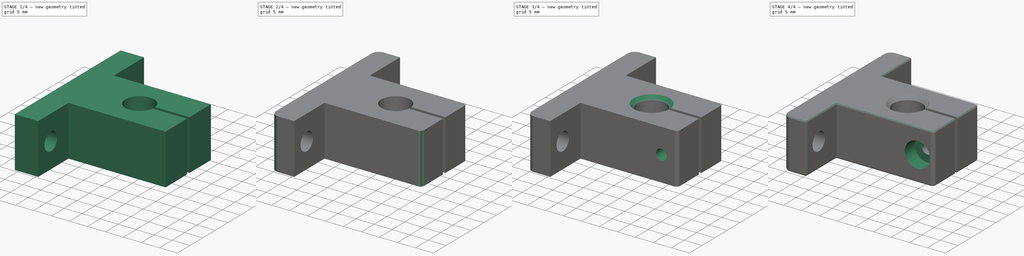
[diagram: build sequence overview — one tinted view per stage of 4, left to right]
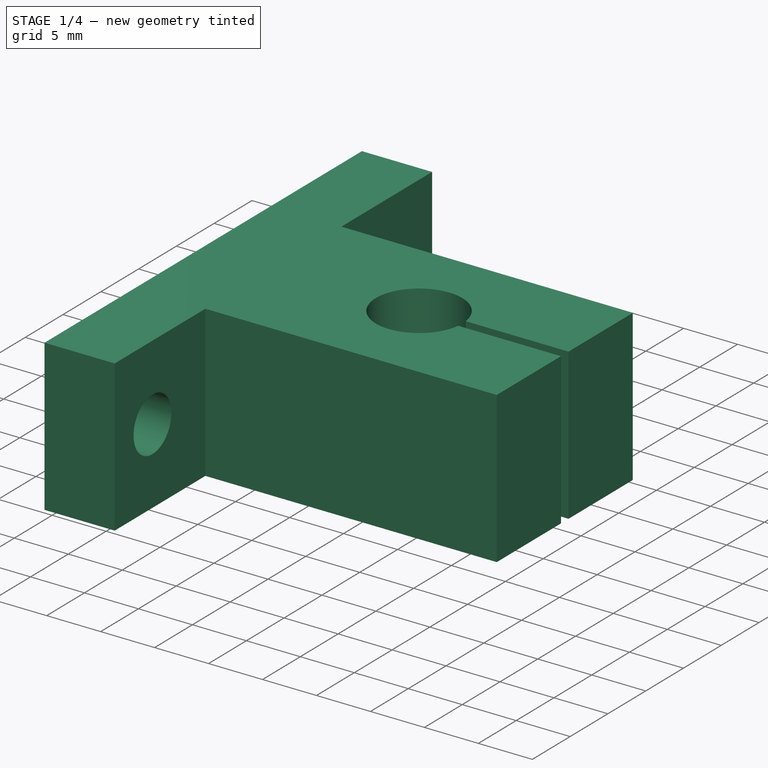
[diagram: stage 1 of 4 — iso view after this stage's code; geometry added in this stage tinted green]
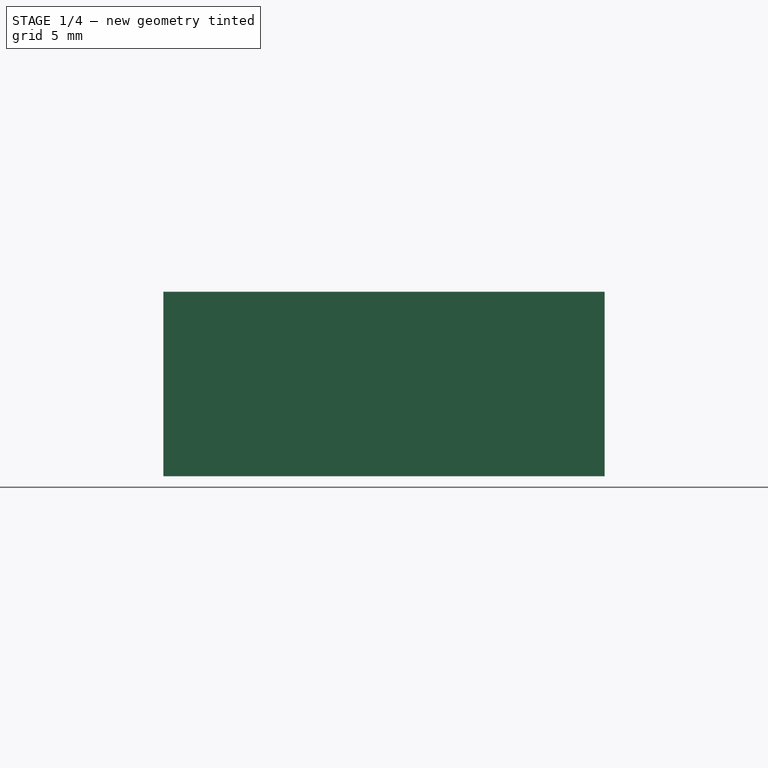
[diagram: stage 1 of 4 — front view after this stage's code; geometry added in this stage tinted green]
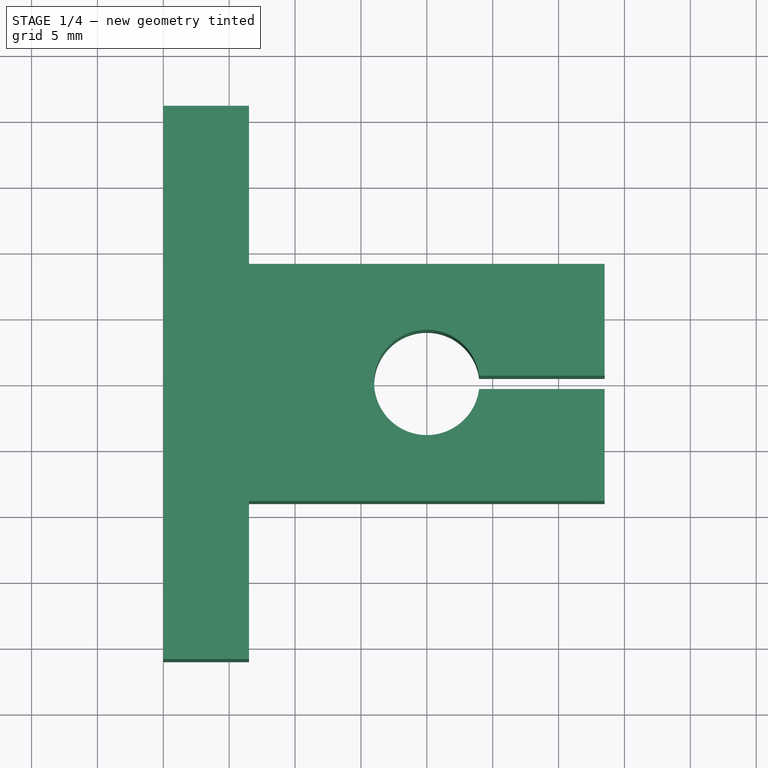
[diagram: stage 1 of 4 — top view after this stage's code; geometry added in this stage tinted green]
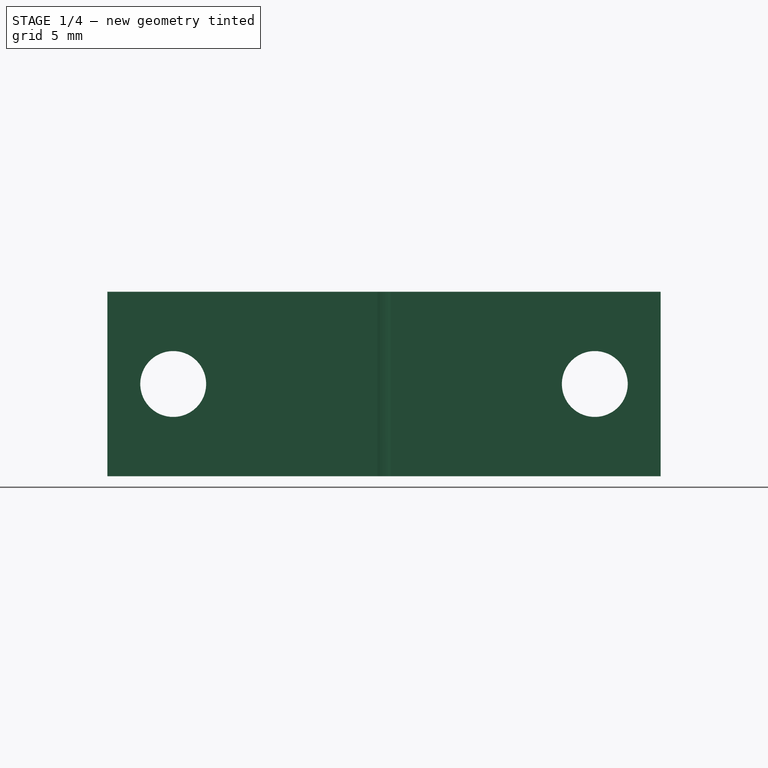
[diagram: stage 1 of 4 — right view after this stage's code; geometry added in this stage tinted green]
FCSTD DOCUMENT  (FreeCAD 0.19R24276 (Git))
Label: Axis_fix_T_form
License: All rights reserved
LicenseURL: http://en.wikipedia.org/wiki/All_rights_reserved
objects: Sketcher::SketchObject×4, PartDesign::Pocket×3, PartDesign::Fillet×3, PartDesign::Chamfer×2, PartDesign::Pad×1, PartDesign::Body×1
note: 23 computed .brp shape members not serialized (recipe doc carries the construction recipe); baked Part::Feature solids carry a one-line shape summary decoded from their .brp

FEATURE [Sketcher::SketchObject] Sketch
  FullyConstrained = true
  MapMode = 5
  Support = -> [XY_Plane]
  sketch-geometry (14):
    g0: LineSegment StartX=-20 StartY=-21 StartZ=0 EndX=-13.5 EndY=-21 EndZ=0
    g1: LineSegment StartX=-13.5 StartY=21 StartZ=0 EndX=-20 EndY=21 EndZ=0
    g2: LineSegment StartX=-20 StartY=21 StartZ=0 EndX=-20 EndY=-21 EndZ=0
    g3: LineSegment StartX=13.5 StartY=9 StartZ=0 EndX=-13.5 EndY=9 EndZ=0
    g4: LineSegment StartX=-13.5 StartY=-9 StartZ=0 EndX=13.5 EndY=-9 EndZ=0
    g5: LineSegment StartX=13.5 StartY=-9 StartZ=0 EndX=13.5 EndY=-0.5 EndZ=0
    g6: LineSegment StartX=-13.5 StartY=9 StartZ=0 EndX=-13.5 EndY=21 EndZ=0
    g7: LineSegment StartX=-13.5 StartY=-9 StartZ=0 EndX=-13.5 EndY=-21 EndZ=0
    g8: ArcOfCircle CenterX=0 CenterY=0 CenterZ=0 NormalX=0 NormalY=0 NormalZ=1 AngleXU=0 Radius=4 StartAngle=0.125328 EndAngle=6.15786
    g9: LineSegment StartX=3.96863 StartY=0.5 StartZ=0 EndX=13.5 EndY=0.5 EndZ=0
    g10: LineSegment StartX=3.96863 StartY=-0.5 StartZ=0 EndX=13.5 EndY=-0.5 EndZ=0
    g11: LineSegment StartX=0 StartY=0 StartZ=0 EndX=3.96863 EndY=0 EndZ=0
    g12: LineSegment StartX=13.5 StartY=0.5 StartZ=0 EndX=13.5 EndY=9 EndZ=0
    g13: LineSegment StartX=0 StartY=0 StartZ=0 EndX=-13.5 EndY=0 EndZ=0
  constraints (39):
    c: Coincident(g1,g2)
    c: Coincident(g2,g0)
    c: Horizontal(g0)
    c: Horizontal(g1)
    c: Vertical(g2)
    c: DistanceY(g2,g2) = 42
    c: Coincident(g4,g5)
    c: Coincident(g12,g3)
    c: Horizontal(g3)
    c: Horizontal(g4)
    c: Vertical(g5)
    c: DistanceY(g5,g12) = 18
    c: DistanceX(g0,g4) = 6.5
    c: Coincident(g6,g3)
    c: Vertical(g6)
    c: Vertical(g7)
    c: Coincident(g7,g0)
    c: Coincident(g6,g1)
    c: DistanceX(g0,g4) = 33.5
    c: Coincident(g4,g7)
    c: Vertical(g4,g3)
    c: DistanceX(g0,g8) = 20
    c: Horizontal(g9)
    c: Horizontal(g10)
    c: DistanceY(g10,g9) = 1
    c: Coincident(g11,g8)
    c: Horizontal(g11)
    c: Symmetric(g9,g10,g11)
    c: Coincident(g8,g9)
    c: Coincident(g8,g10)
    c: Coincident(g5,g10)
    c: Coincident(g12,g9)
    c: Tangent(g5,g12)
    c: Coincident(g13,g8)
    c: Horizontal(g13)
    c: Symmetric(g4,g3,g13)
    c: Equal(g6,g7)
    c: Diameter(g8) = 8
    c: Coincident(g8,g-1)
FEATURE [PartDesign::Pad] Pad
  Direction = (1,1,1)
  Length = 14
  Length2 = 100
  Profile = -> Sketch
  Type = 0
FEATURE [Sketcher::SketchObject] Sketch001
  FullyConstrained = true
  MapMode = 5
  Placement = pos=(-20,0,0) rot=(0.57735,-0.57735,-0.57735;2.0944rad)
  Support = -> [Pad]
  sketch-geometry (3):
    g0: Circle CenterX=-16 CenterY=7 CenterZ=0 NormalX=0 NormalY=0 NormalZ=1 AngleXU=0 Radius=2.5
    g1: Circle CenterX=16 CenterY=7 CenterZ=0 NormalX=0 NormalY=0 NormalZ=1 AngleXU=0 Radius=2.5
    g2: LineSegment StartX=0 StartY=0 StartZ=0 EndX=0 EndY=7 EndZ=0
  constraints (8):
    c: Horizontal(g0,g1)
    c: Diameter(g1) = 5
    c: Equal(g0,g1)
    c: DistanceY(g-1,g1) = 7
    c: DistanceX(g0,g1) = 32
    c: Coincident(g2,g-1)
    c: PointOnObject(g2,g-2)
    c: Symmetric(g0,g1,g2)
FEATURE [PartDesign::Pocket] Pocket
  BaseFeature = -> Pad
  Length = 5
  Length2 = 100
  Profile = -> Sketch001
  Type = 1
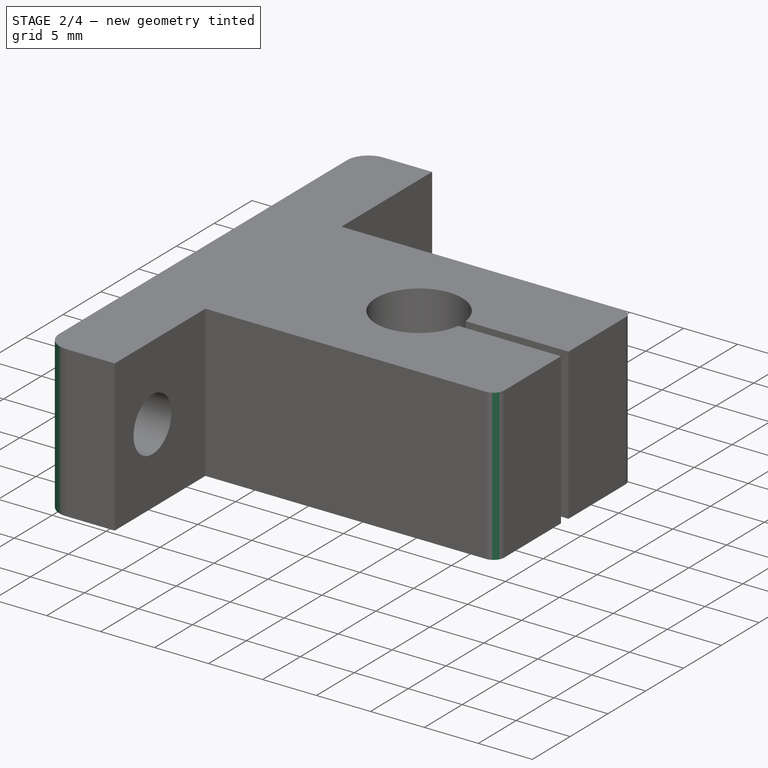
[diagram: stage 2 of 4 — iso view after this stage's code; geometry added in this stage tinted green]
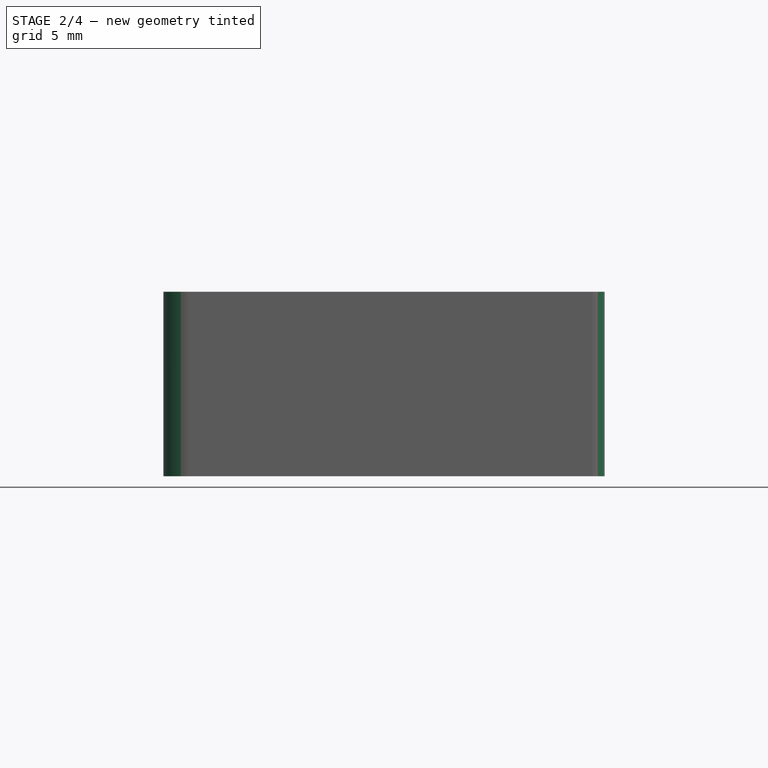
[diagram: stage 2 of 4 — front view after this stage's code; geometry added in this stage tinted green]
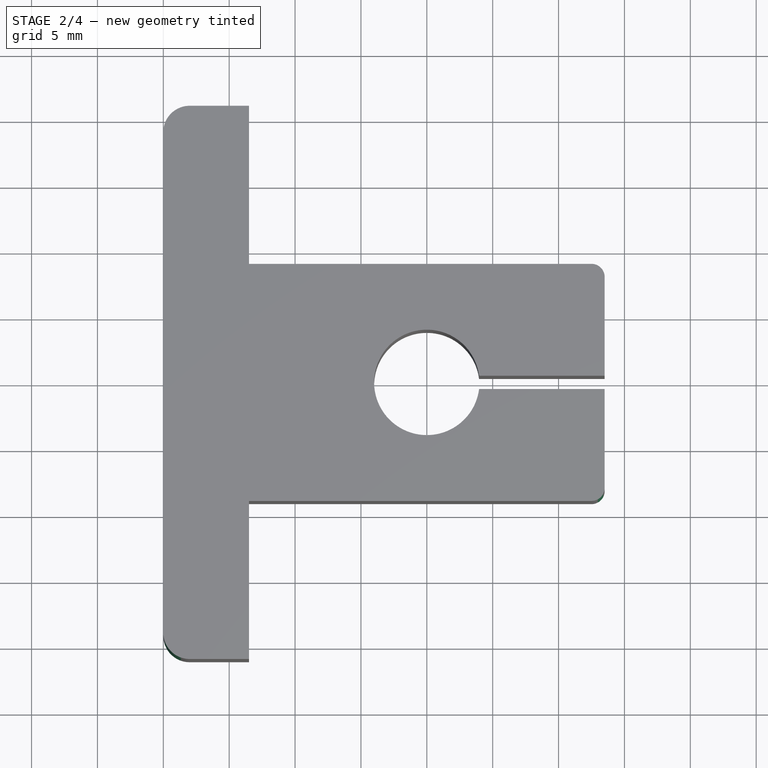
[diagram: stage 2 of 4 — top view after this stage's code; geometry added in this stage tinted green]
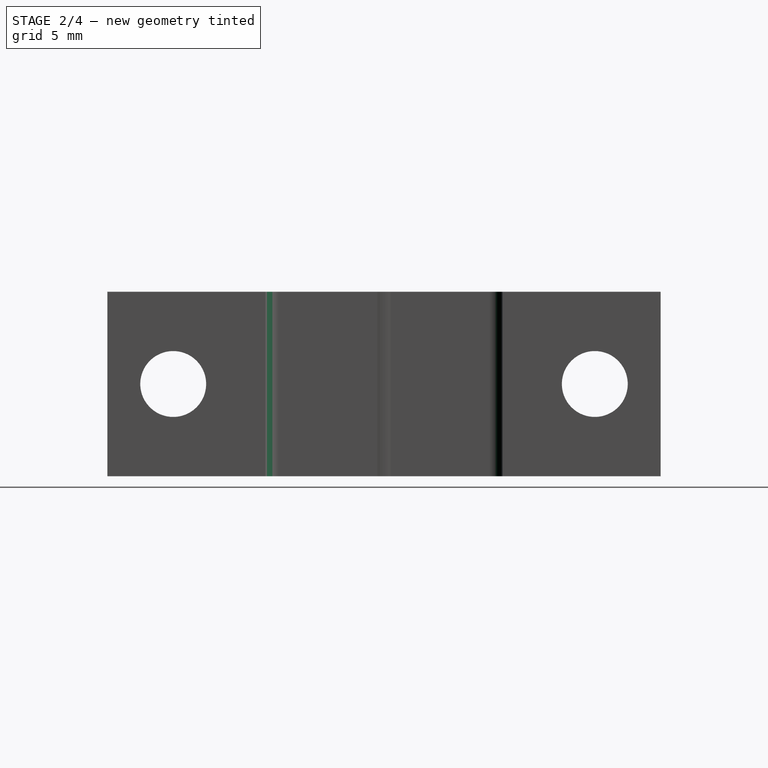
[diagram: stage 2 of 4 — right view after this stage's code; geometry added in this stage tinted green]
FEATURE [PartDesign::Fillet] Fillet
  Base = -> Pocket [Edge33,Edge34]
  BaseFeature = -> Pocket
  Radius = 2
  SupportTransform = false
FEATURE [PartDesign::Fillet] Fillet001
  Base = -> Fillet [Edge27,Edge42]
  BaseFeature = -> Fillet
  Radius = 1
  SupportTransform = false
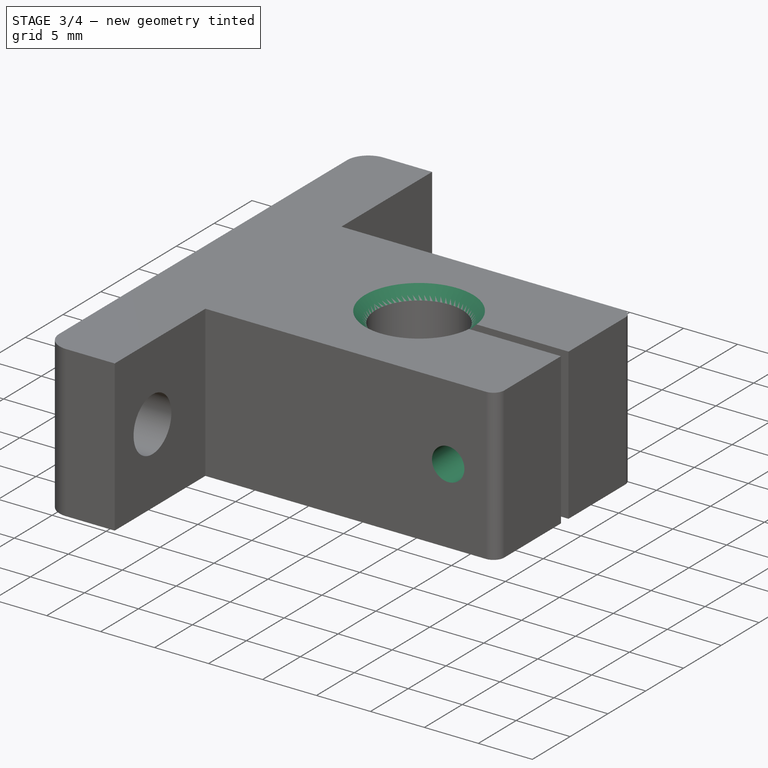
[diagram: stage 3 of 4 — iso view after this stage's code; geometry added in this stage tinted green]
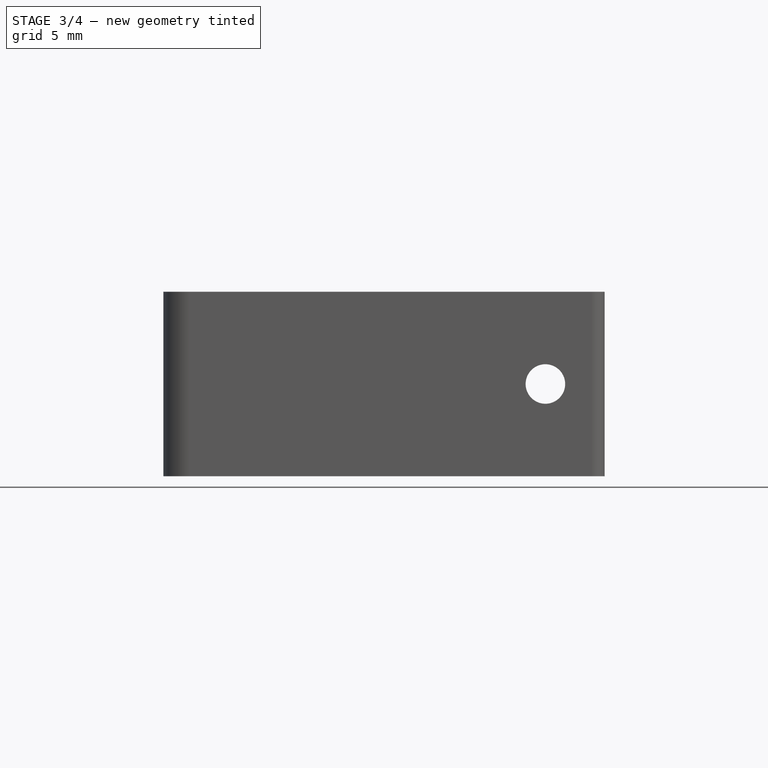
[diagram: stage 3 of 4 — front view after this stage's code; geometry added in this stage tinted green]
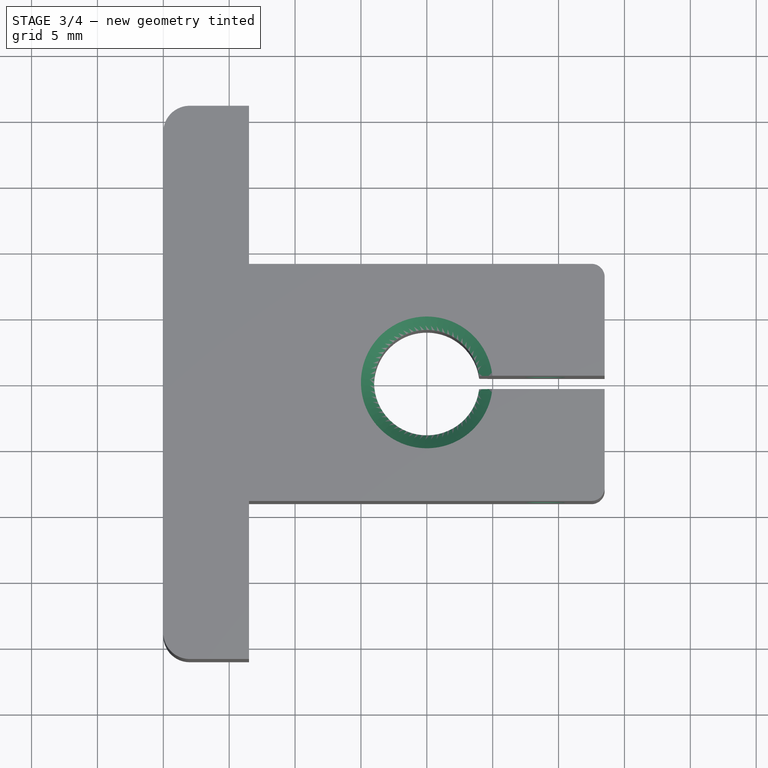
[diagram: stage 3 of 4 — top view after this stage's code; geometry added in this stage tinted green]
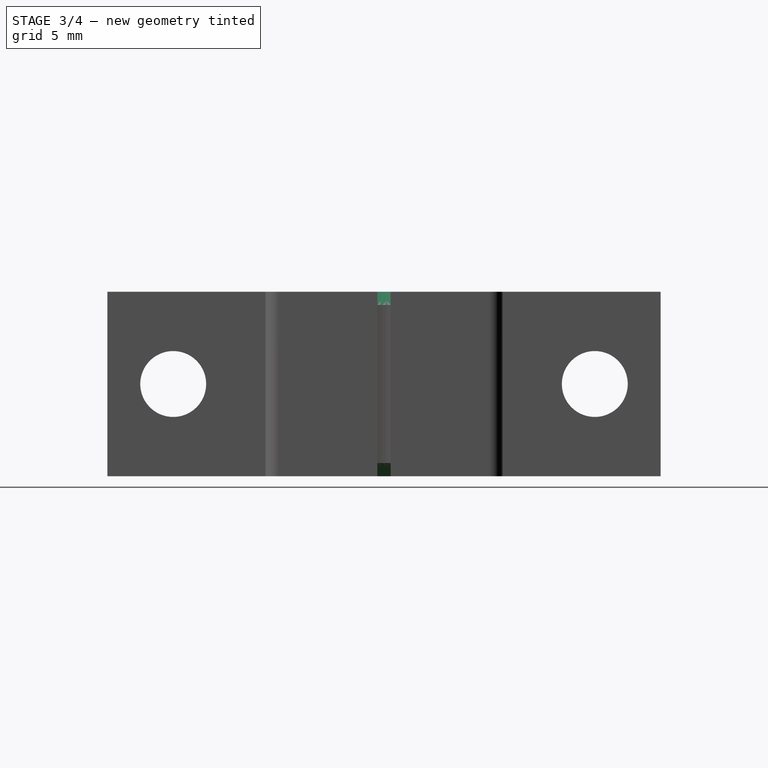
[diagram: stage 3 of 4 — right view after this stage's code; geometry added in this stage tinted green]
FEATURE [PartDesign::Chamfer] Chamfer
  Angle = 45
  Base = -> Fillet001 [Edge34]
  BaseFeature = -> Fillet001
  ChamferType = 0
  FlipDirection = false
  Size = 1
  Size2 = 1
  SupportTransform = false
FEATURE [PartDesign::Chamfer] Chamfer001
  Angle = 45
  Base = -> Chamfer [Edge7]
  BaseFeature = -> Chamfer
  ChamferType = 0
  FlipDirection = false
  Size = 1
  Size2 = 1
  SupportTransform = false
FEATURE [Sketcher::SketchObject] Sketch002
  FullyConstrained = true
  MapMode = 5
  Placement = pos=(0,9,0) rot=(0,0.707107,0.707107;3.14159rad)
  Support = -> [Chamfer001]
  sketch-geometry (1):
    g0: Circle CenterX=-9 CenterY=7 CenterZ=0 NormalX=0 NormalY=0 NormalZ=1 AngleXU=0 Radius=1.5
  constraints (3):
    c: DistanceY(g-1,g0) = 7
    c: DistanceX(g0,g-1) = 9
    c: Diameter(g0) = 3
FEATURE [PartDesign::Pocket] Pocket001
  BaseFeature = -> Chamfer001
  Length = 5
  Length2 = 100
  Profile = -> Sketch002
  Type = 1
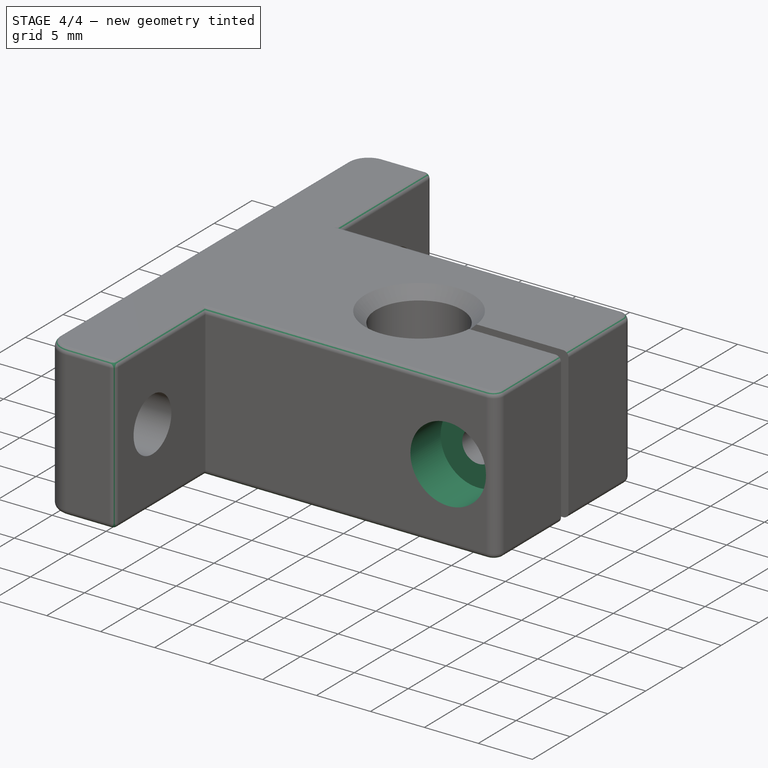
[diagram: stage 4 of 4 — iso view after this stage's code; geometry added in this stage tinted green]
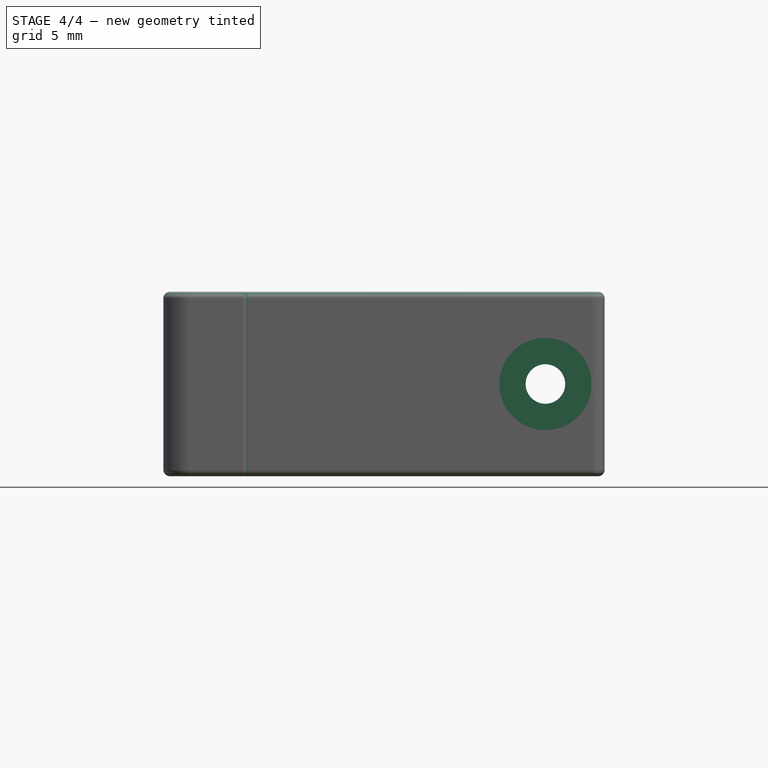
[diagram: stage 4 of 4 — front view after this stage's code; geometry added in this stage tinted green]
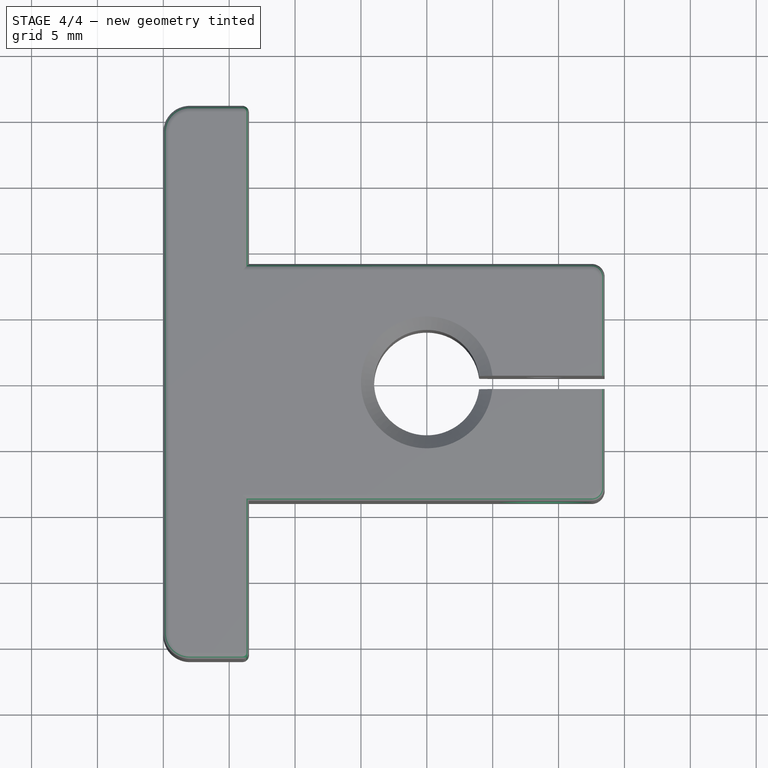
[diagram: stage 4 of 4 — top view after this stage's code; geometry added in this stage tinted green]
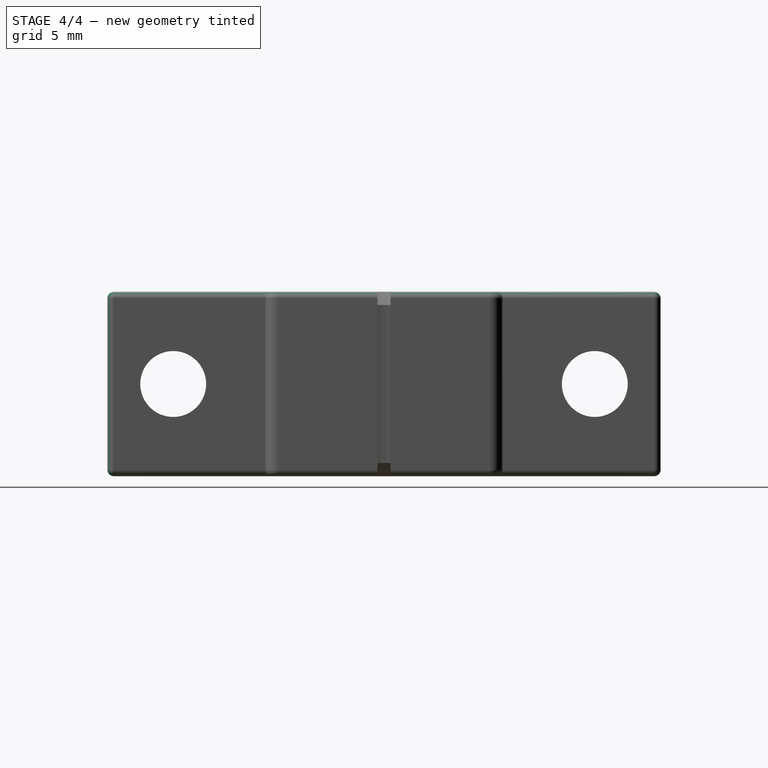
[diagram: stage 4 of 4 — right view after this stage's code; geometry added in this stage tinted green]
FEATURE [Sketcher::SketchObject] Sketch003
  FullyConstrained = true
  MapMode = 5
  Placement = pos=(0,-9,0) rot=(1,0,0;1.5708rad)
  Support = -> [Pocket001]
  sketch-geometry (1):
    g0: Circle CenterX=9 CenterY=7 CenterZ=0 NormalX=0 NormalY=0 NormalZ=1 AngleXU=0 Radius=3.5
  constraints (3):
    c: Diameter(g0) = 7
    c: DistanceX(g-1,g0) = 9
    c: DistanceY(g-1,g0) = 7
FEATURE [PartDesign::Pocket] Pocket002
  BaseFeature = -> Pocket001
  Length = 4
  Length2 = 100
  Profile = -> Sketch003
  Type = 0
FEATURE [PartDesign::Fillet] Fillet002
  Base = -> Pocket002 [Edge36,Edge22,Edge33,Edge19,Edge24,Edge38,Edge21,Edge58,Edge53,Edge35,Edge37,Edge23,Edge26,Edge40,Edge18,Edge15,Edge32,Edge29,Edge34,Edge31,Edge17,Edge20]
  BaseFeature = -> Pocket002
  Radius = 0.5
  SupportTransform = false
FEATURE [PartDesign::Body] Body
  Group = -> [Sketch,Pad,Sketch001,Pocket,Fillet,Fillet001,Chamfer,Chamfer001,Sketch002,Pocket001,Sketch003,Pocket002,Fillet002]
  Origin = -> Origin
  Tip = -> Fillet002
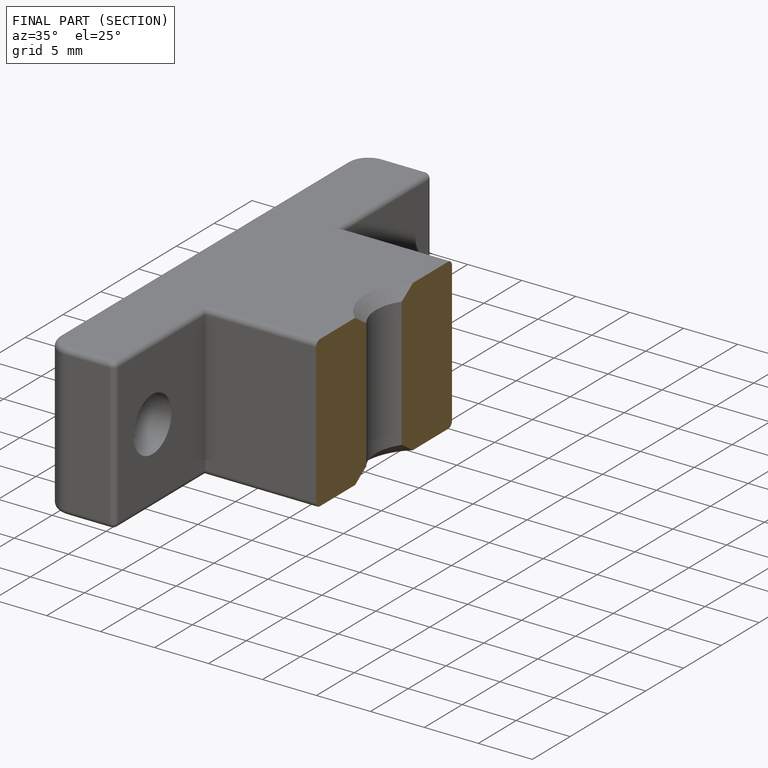
[diagram: finished part — half-section view (interior)]
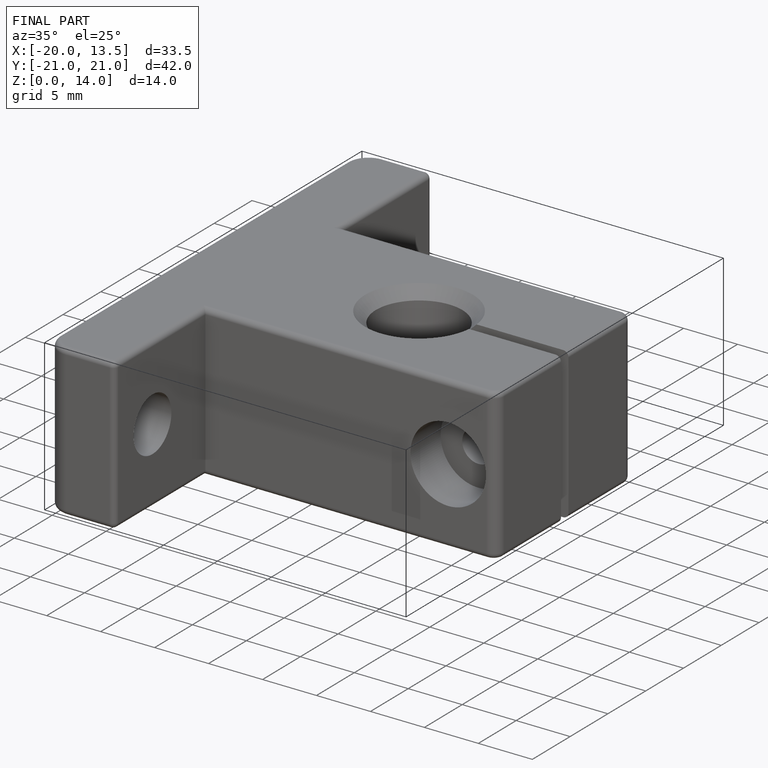
[diagram: finished part — iso view with bounding-box wireframe]
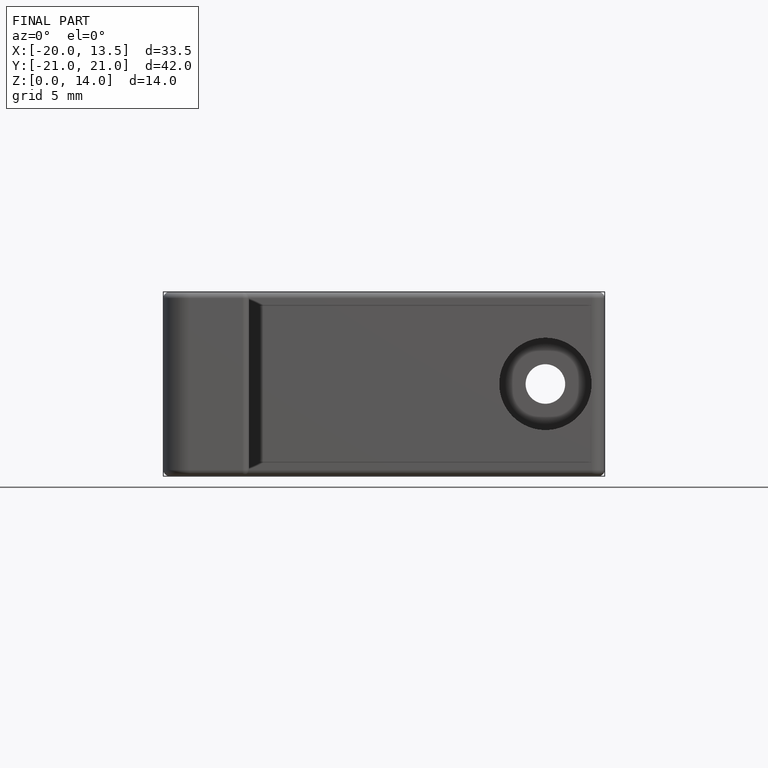
[diagram: finished part — front view with bounding-box wireframe]
